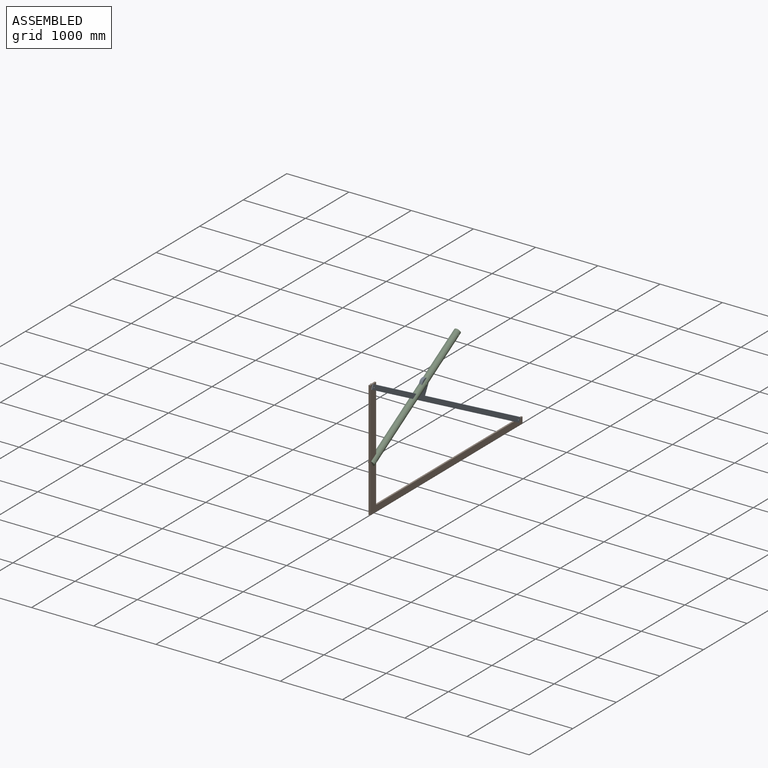
[diagram: assembled view]
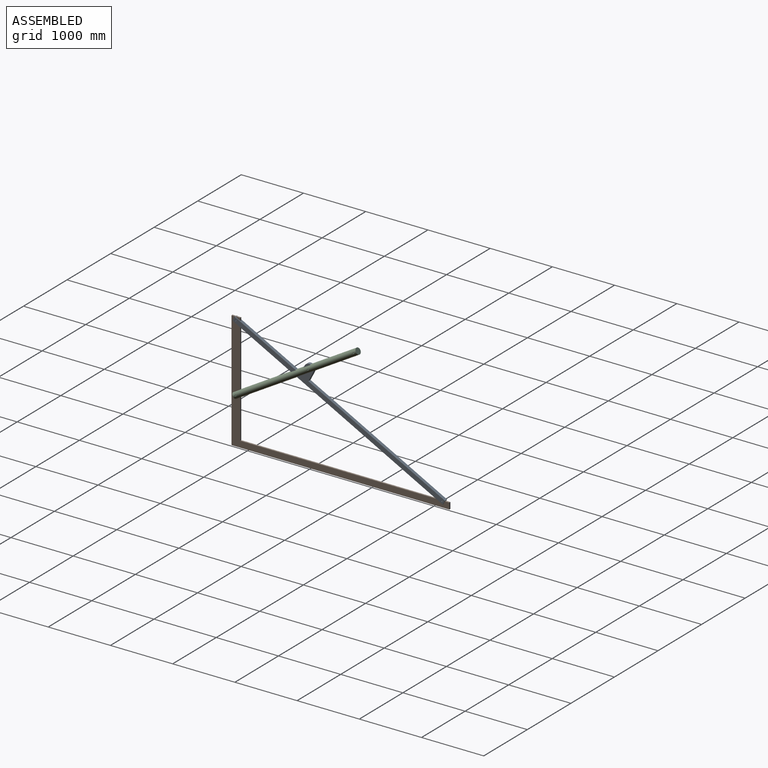
[diagram: assembled view, second angle]
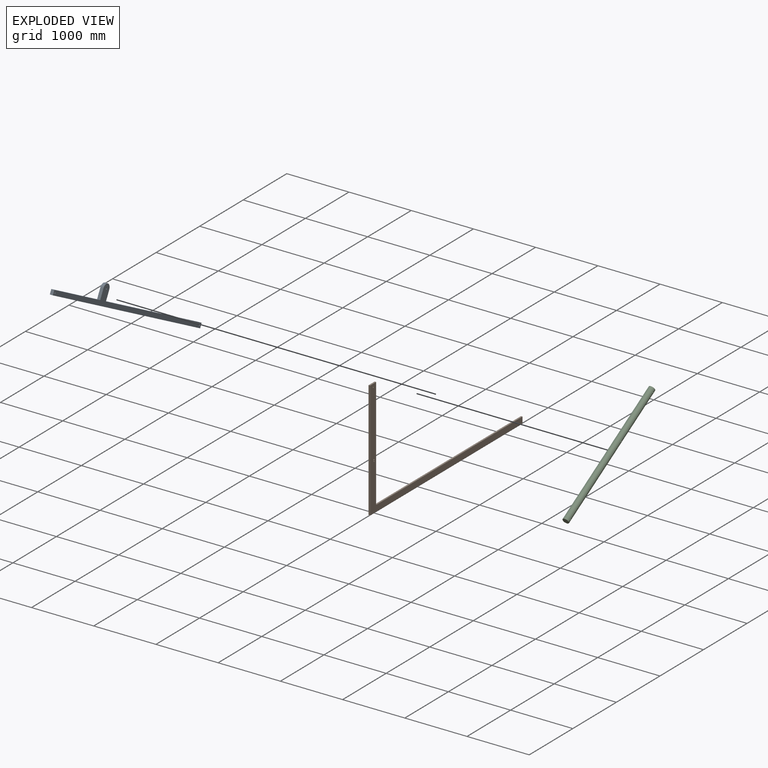
[diagram: exploded view]
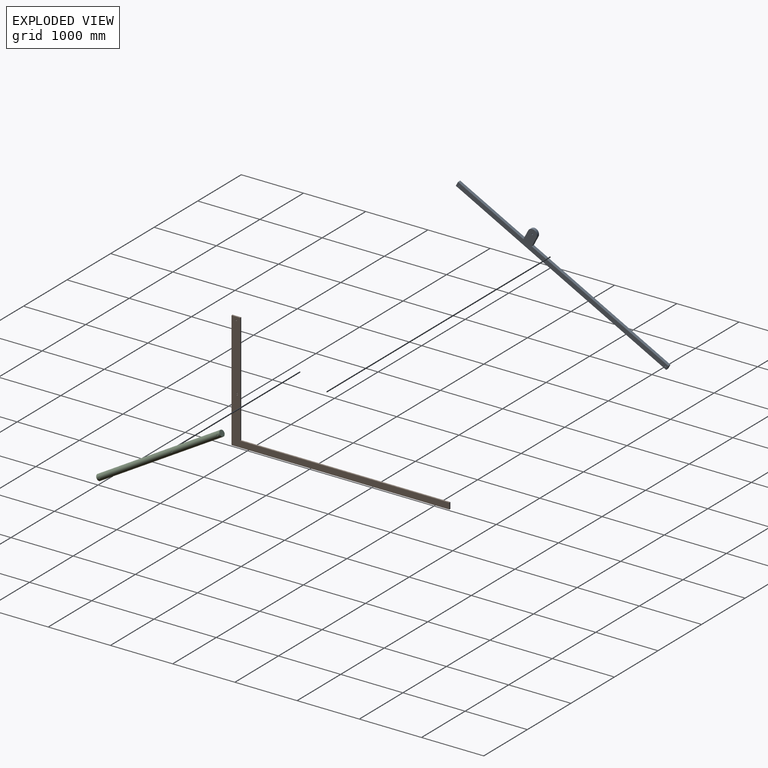
[diagram: exploded view, second angle]
ASSEMBLY  parts=3 mates=2
PART A: 13 faces, bbox 50x3815x312.5 mm
  f0: plane 2478.74x50mm, normal (0,0,1), area 123936.8mm2, adj f6,f7,f8,f11
  f1: plane 1186.26x50mm, normal (0,0,1), area 59313.2mm2, adj f2,f7,f8,f9
  f2: plane 75x50mm, normal (0,-1,0), area 3750mm2, adj f1,f3,f7,f8
  f3: plane 3815x50mm, normal (0,0,-1), area 190750mm2, adj f2,f6,f7,f8
  f4: cylinder r=10mm len=50mm, axis (-1,0,0), area 3141.6mm2, adj f7,f8
  f5: cylinder r=10mm len=50mm, axis (-1,0,0), area 3141.6mm2, adj f7,f8
  f6: plane 75x50mm, normal (0,1,0), area 3750mm2, adj f0,f3,f7,f8
  f7: plane 3815x312.5mm, normal (1,0,0), area 318393.3mm2, adj f0,f1,f2,f3,f4,f5,f6,f9
  f8: plane 3815x312.5mm, normal (-1,0,0), area 318393.3mm2, adj f0,f1,f2,f3,f4,f5,f6,f9
  f9: plane 162.5x50mm, normal (0,-1,0), area 8125mm2, adj f1,f7,f8,f10
  f10: cylinder r=75mm len=150mm, axis (1,0,0), area 11781mm2, adj f7,f8,f9,f11
  f11: plane 162.5x50mm, normal (0,1,0), area 8125mm2, adj f0,f7,f8,f10
  f12: cylinder r=10mm len=50mm, axis (1,0,0), area 3141.6mm2, adj f7,f8
PART B: 11 faces, bbox 25x3500x1885 mm
  f0: plane 1885x25mm, normal (0,-1,0), area 47125mm2, adj f3,f5,f6,f9
  f1: plane 1785x25mm, normal (0,1,0), area 44625mm2, adj f3,f5,f6,f8
  f2: cylinder r=10mm len=25mm, axis (-1,0,0), area 1570.8mm2, adj f5,f6
  f3: plane 140x25mm, normal (0,0,1), area 3500mm2, adj f0,f1,f5,f6
  f4: cylinder r=10mm len=25mm, axis (-1,0,0), area 1570.8mm2, adj f5,f6
  f5: plane 3500x1885mm, normal (1,0,0), area 598957.5mm2, adj f0,f1,f2,f3,f4,f7,f8,f9
  f6: plane 3500x1885mm, normal (-1,0,0), area 598957.5mm2, adj f0,f1,f2,f3,f4,f7,f8,f9
  f7: cylinder r=10mm len=25mm, axis (1,0,0), area 1570.8mm2, adj f5,f6
  f8: plane 3360x25mm, normal (0,0,1), area 84000mm2, adj f1,f5,f6,f10
  f9: plane 3500x25mm, normal (0,0,-1), area 87500mm2, adj f0,f5,f6,f10
  f10: plane 100x25mm, normal (0,1,0), area 2500mm2, adj f5,f6,f8,f9
PART C: 6 faces, bbox 100x2300x100 mm
  f0: cylinder r=50mm len=2300mm, axis (0,1,0), area 720672.1mm2, adj f1,f2,f3,f4,f5
  f1: plane 100x100mm, normal (0,-1,0), area 7854mm2, adj f0
  f2: plane 100x100mm, normal (0,1,0), area 7854mm2, adj f0
  f3: cylinder r=10mm len=100mm, axis (1,0,0), area 6219.9mm2, adj f0
  f4: cylinder r=10mm len=100mm, axis (1,0,0), area 6219.9mm2, adj f0
  f5: cylinder r=10mm len=100mm, axis (1,0,0), area 6219.9mm2, adj f0
PLACE A rot(axis=(-1,0,0),27.6deg) t=(-932.3,-123.96,1456.46)mm
PLACE B t=(-932.3,-198.96,-278.54)mm fixed
PLACE C rot(axis=(1,0,0),30.6deg) t=(-932.3,-108.88,378.6)mm
MATE revolute C.f3 <-> A.f10  axis (1,0,0) through (-932.3,1052.98,1066.05)mm
MATE revolute A.f4 <-> B.f4  axis (1,0,0) through (-907.3,-123.96,1456.46)mm
